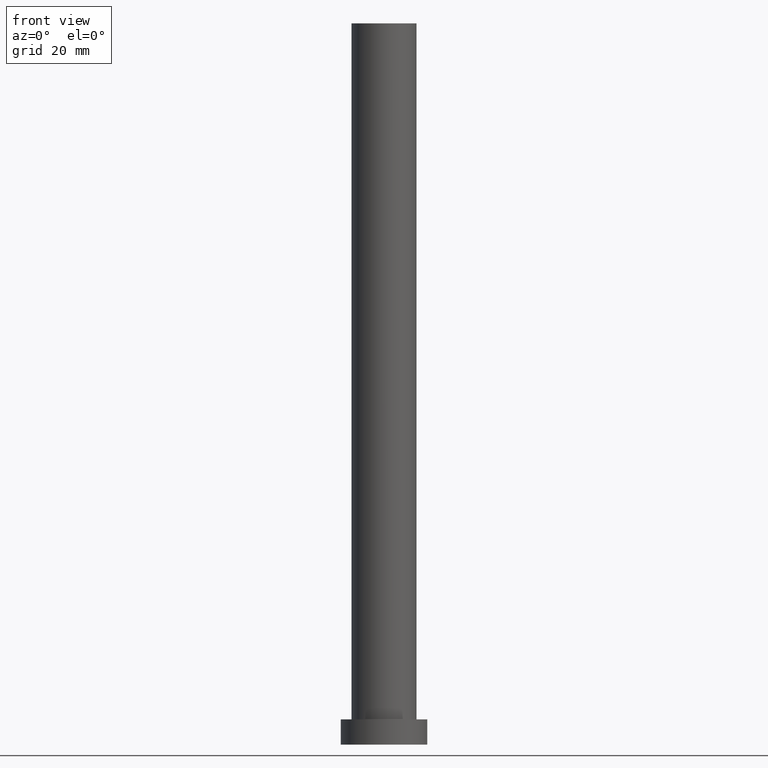
[diagram: clean part render]
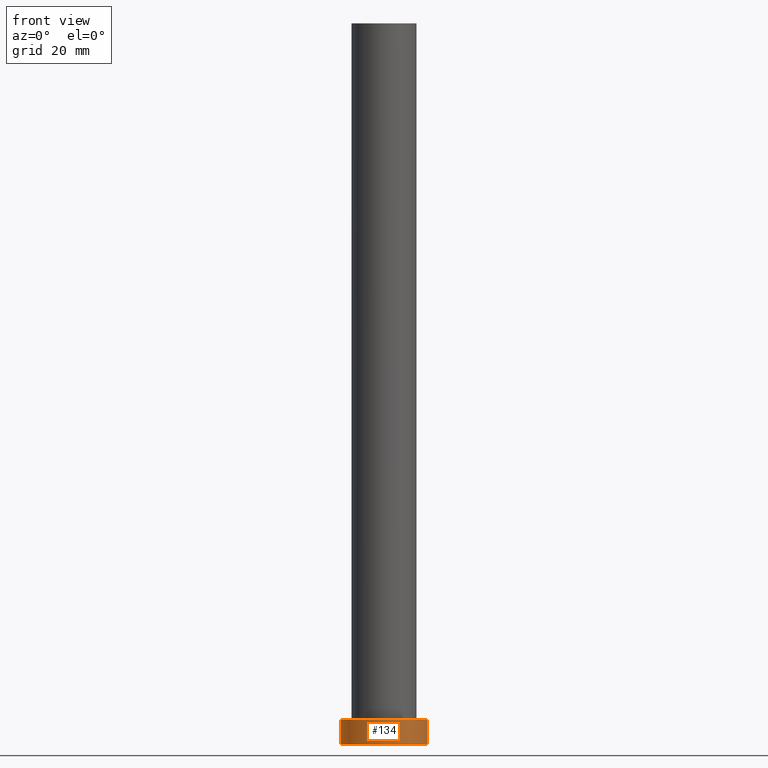
[diagram: same view with one face highlighted and labeled with its STEP entity id]
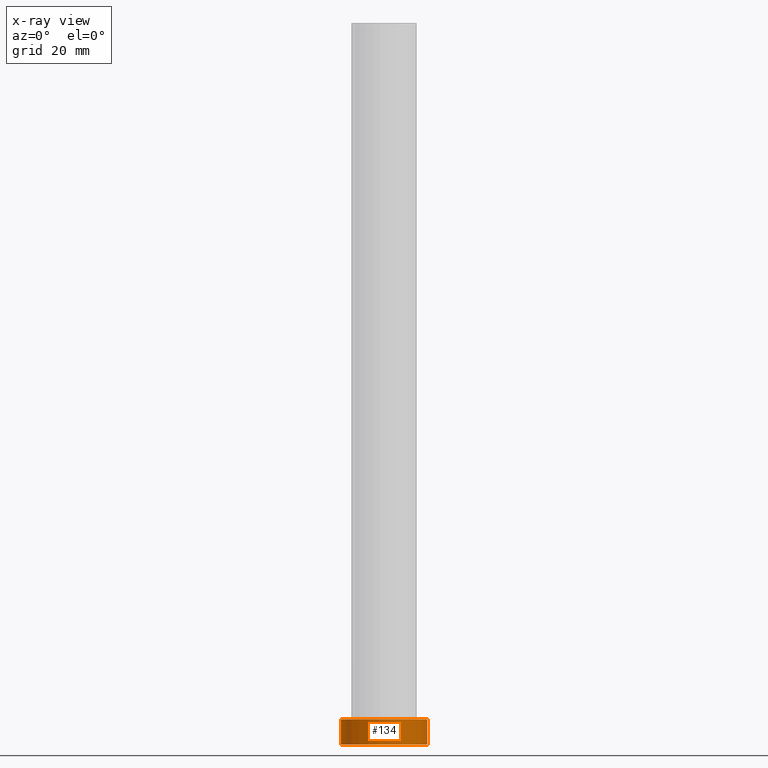
[diagram: x-ray of the same camera — body ghosted, the highlighted face saturated]
A machine part, front view. The second image highlights one B-rep face of the part: STEP entity #134.
The next image is the same camera in x-ray: the body ghosted, the highlighted face saturated — about 0% of this face is hidden behind the body in this view.
In plain terms, the highlighted cylindrical surface (partial cylindrical patch) has radius 12 mm, axis along (-0, -0, -1).
Its self-contained STEP definition (entity closure, byte-faithful):
#4 = VERTEX_POINT ( 'NONE', #147 ) ;
#13 = DIRECTION ( 'NONE',  ( -0.000000000000000000, -0.000000000000000000, -1.000000000000000000 ) ) ;
#20 = EDGE_CURVE ( 'NONE', #170, #131, #59, .T. ) ;
#23 = CARTESIAN_POINT ( 'NONE',  ( -12.00000000000000178, 0.000000000000000000, 7.000000000000000000 ) ) ;
#43 = EDGE_CURVE ( 'NONE', #241, #170, #116, .T. ) ;
#51 = CARTESIAN_POINT ( 'NONE',  ( -12.00000000000000178, 0.000000000000000000, 0.000000000000000000 ) ) ;
#52 = DIRECTION ( 'NONE',  ( 0.000000000000000000, 0.000000000000000000, 1.000000000000000000 ) ) ;
#53 = DIRECTION ( 'NONE',  ( -1.000000000000000000, 0.000000000000000000, 0.000000000000000000 ) ) ;
#54 = CARTESIAN_POINT ( 'NONE',  ( 0.000000000000000000, 0.000000000000000000, 0.000000000000000000 ) ) ;
#59 = CIRCLE ( 'NONE', #224, 12.00000000000000178 ) ;
#69 = AXIS2_PLACEMENT_3D ( 'NONE', #93, #192, #53 ) ;
#87 = EDGE_CURVE ( 'NONE', #4, #131, #121, .T. ) ;
#90 = ORIENTED_EDGE ( 'NONE', *, *, #196, .F. ) ;
#91 = CARTESIAN_POINT ( 'NONE',  ( 0.000000000000000000, 0.000000000000000000, 7.000000000000000000 ) ) ;
#93 = CARTESIAN_POINT ( 'NONE',  ( 0.000000000000000000, 0.000000000000000000, 7.000000000000000000 ) ) ;
#97 = DIRECTION ( 'NONE',  ( -0.000000000000000000, -0.000000000000000000, -1.000000000000000000 ) ) ;
#116 = LINE ( 'NONE', #250, #136 ) ;
#118 = VECTOR ( 'NONE', #97, 1000.000000000000000 ) ;
#121 = LINE ( 'NONE', #162, #118 ) ;
#122 = CYLINDRICAL_SURFACE ( 'NONE', #69, 12.00000000000000178 ) ;
#131 = VERTEX_POINT ( 'NONE', #143 ) ;
#134 = ADVANCED_FACE ( 'NONE', ( #217 ), #122, .T. ) ;
#136 = VECTOR ( 'NONE', #13, 1000.000000000000000 ) ;
#143 = CARTESIAN_POINT ( 'NONE',  ( 12.00000000000000178, 1.469576158976824144E-15, 0.000000000000000000 ) ) ;
#147 = CARTESIAN_POINT ( 'NONE',  ( 12.00000000000000178, 1.469576158976824144E-15, 7.000000000000000000 ) ) ;
#153 = ORIENTED_EDGE ( 'NONE', *, *, #20, .T. ) ;
#162 = CARTESIAN_POINT ( 'NONE',  ( 12.00000000000000178, 1.469576158976824144E-15, 7.000000000000000000 ) ) ;
#166 = DIRECTION ( 'NONE',  ( 1.000000000000000000, 0.000000000000000000, 0.000000000000000000 ) ) ;
#170 = VERTEX_POINT ( 'NONE', #51 ) ;
#171 = DIRECTION ( 'NONE',  ( 0.000000000000000000, 0.000000000000000000, 1.000000000000000000 ) ) ;
#187 = ORIENTED_EDGE ( 'NONE', *, *, #87, .F. ) ;
#189 = ORIENTED_EDGE ( 'NONE', *, *, #43, .T. ) ;
#191 = EDGE_LOOP ( 'NONE', ( #187, #90, #189, #153 ) ) ;
#192 = DIRECTION ( 'NONE',  ( -0.000000000000000000, -0.000000000000000000, -1.000000000000000000 ) ) ;
#196 = EDGE_CURVE ( 'NONE', #241, #4, #210, .T. ) ;
#210 = CIRCLE ( 'NONE', #243, 12.00000000000000178 ) ;
#217 = FACE_OUTER_BOUND ( 'NONE', #191, .T. ) ;
#224 = AXIS2_PLACEMENT_3D ( 'NONE', #54, #52, #246 ) ;
#241 = VERTEX_POINT ( 'NONE', #23 ) ;
#243 = AXIS2_PLACEMENT_3D ( 'NONE', #91, #171, #166 ) ;
#246 = DIRECTION ( 'NONE',  ( 1.000000000000000000, 0.000000000000000000, 0.000000000000000000 ) ) ;
#250 = CARTESIAN_POINT ( 'NONE',  ( -12.00000000000000178, 0.000000000000000000, 7.000000000000000000 ) ) ;